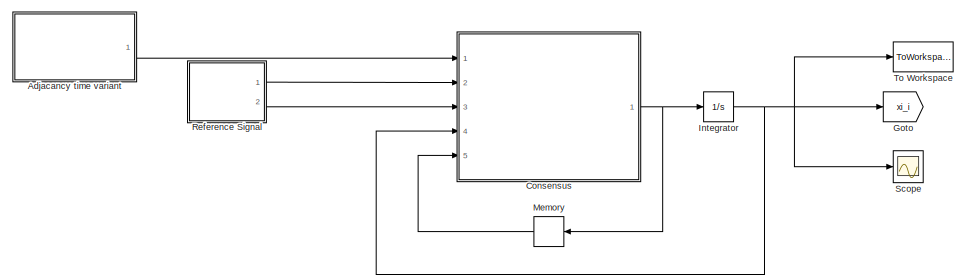
[diagram: root canvas - part 1/4, top center region]
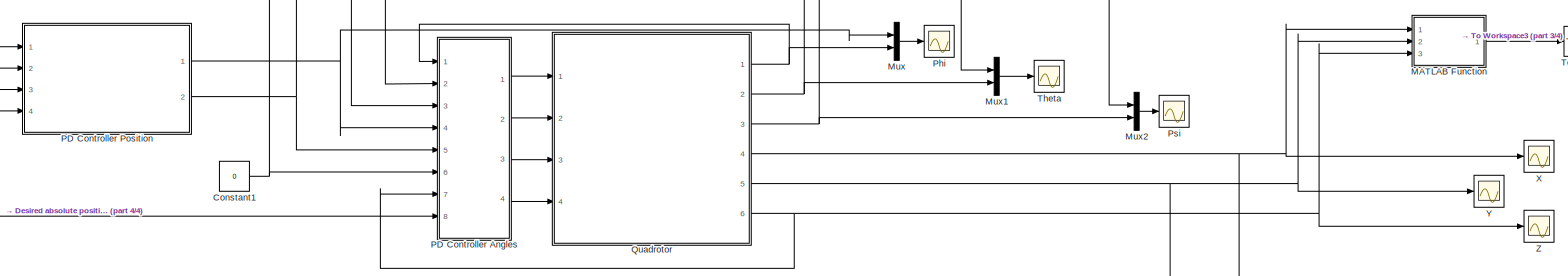
[diagram: root canvas - part 2/4, central region]
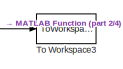
[diagram: root canvas - part 3/4, middle right region]
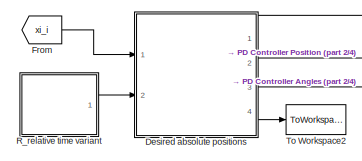
[diagram: root canvas - part 4/4, middle left region]
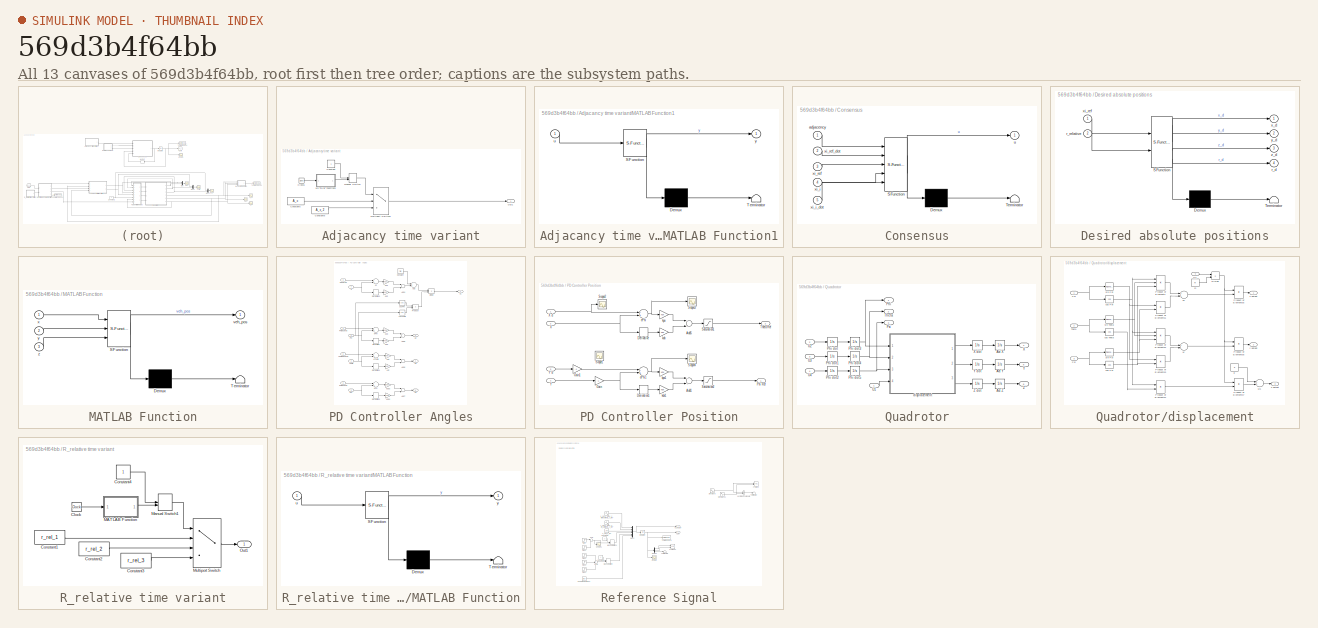
[diagram: thumbnail index - all 13 canvases of the model, root first then tree order]
MODEL slx_569d3b4f64bb
KIND model
CONFIG AbsTol = auto
CONFIG FixedStep = 0.01
CONFIG MaxStep = 0.01
CONFIG MinStep = auto
CONFIG RelTol = 1e-3
CONFIG SampleTimeConstraint = Unconstrained
CONFIG Solver = VariableStepAuto
CONFIG SolverMode = Auto
CONFIG SolverName = VariableStepAuto
CONFIG StartTime = 0.0
CONFIG StopTime = 100
BLOCK [SubSystem] Adjacancy time variant
  Ports = [0, 1]
  RequestExecContextInheritance = off
  Variant = off
BLOCK [Clock] Adjacancy time variant/Clock1
BLOCK [Constant] Adjacancy time variant/Constant
BLOCK [Constant] Adjacancy time variant/Constant5
  Value = A_c
BLOCK [Constant] Adjacancy time variant/Constant6
  Value = A_c_2
BLOCK [SubSystem] Adjacancy time variant/MATLAB Function1
  ErrorFcn = Stateflow.Translate.translate
  PermitHierarchicalResolution = ExplicitOnly
  Ports = [1, 1]
  RequestExecContextInheritance = off
  SFBlockType = MATLAB Function
  TreatAsAtomicUnit = on
  Variant = off
BLOCK [Demux] Adjacancy time variant/MATLAB Function1/ Demux 
  Outputs = 1
  Ports = [1, 1]
BLOCK [S-Function] Adjacancy time variant/MATLAB Function1/ SFunction 
  EnableBusSupport = on
  FunctionName = sf_sfun
  PortCounts = [1 2]
  Ports = [1, 2]
  SFunctionDeploymentMode = off
  Tag = Stateflow S-Function simulation 1
BLOCK [Terminator] Adjacancy time variant/MATLAB Function1/ Terminator 
BLOCK [Inport] Adjacancy time variant/MATLAB Function1/u
  IconDisplay = Port number
BLOCK [Outport] Adjacancy time variant/MATLAB Function1/y
  IconDisplay = Port number
BLOCK [ManualSwitch] Adjacancy time variant/Manual Switch
BLOCK [MultiPortSwitch] Adjacancy time variant/Multiport Switch1
  InputSameDT = off
  Inputs = 2
  Ports = [3, 1]
  SaturateOnIntegerOverflow = off
BLOCK [Outport] Adjacancy time variant/Out1
  IconDisplay = Port number
BLOCK [SubSystem] Consensus
  ErrorFcn = Stateflow.Translate.translate
  MinAlgLoopOccurrences = on
  PermitHierarchicalResolution = ExplicitOnly
  Ports = [5, 1]
  RequestExecContextInheritance = off
  SFBlockType = MATLAB Function
  TreatAsAtomicUnit = on
  Variant = off
BLOCK [Demux] Consensus/ Demux 
  Outputs = 1
  Ports = [1, 1]
BLOCK [S-Function] Consensus/ SFunction 
  EnableBusSupport = on
  FunctionName = sf_sfun
  PortCounts = [5 2]
  Ports = [5, 2]
  SFunctionDeploymentMode = off
  Tag = Stateflow S-Function simulation 2
BLOCK [Terminator] Consensus/ Terminator 
BLOCK [Inport] Consensus/adjacency
  IconDisplay = Port number
BLOCK [Outport] Consensus/u
  IconDisplay = Port number
BLOCK [Inport] Consensus/xi_i
  IconDisplay = Port number
  Port = 4
BLOCK [Inport] Consensus/xi_i_dot
  IconDisplay = Port number
  Port = 5
BLOCK [Inport] Consensus/xi_ref
  IconDisplay = Port number
  Port = 3
BLOCK [Inport] Consensus/xi_ref_dot
  IconDisplay = Port number
  Port = 2
BLOCK [Constant] Constant1
  Value = 0
BLOCK [SubSystem] Desired absolute positions
  ErrorFcn = Stateflow.Translate.translate
  PermitHierarchicalResolution = ExplicitOnly
  Ports = [2, 4]
  RequestExecContextInheritance = off
  SFBlockType = MATLAB Function
  TreatAsAtomicUnit = on
  Variant = off
BLOCK [Demux] Desired absolute positions/ Demux 
  Outputs = 1
  Ports = [1, 1]
BLOCK [S-Function] Desired absolute positions/ SFunction 
  EnableBusSupport = on
  FunctionName = sf_sfun
  PortCounts = [2 5]
  Ports = [2, 5]
  SFunctionDeploymentMode = off
  Tag = Stateflow S-Function simulation 4
BLOCK [Terminator] Desired absolute positions/ Terminator 
BLOCK [Outport] Desired absolute positions/r_d
  IconDisplay = Port number
  Port = 4
BLOCK [Inport] Desired absolute positions/r_relative
  IconDisplay = Port number
  Port = 2
BLOCK [Outport] Desired absolute positions/x_d
  IconDisplay = Port number
BLOCK [Inport] Desired absolute positions/xi_ref
  IconDisplay = Port number
BLOCK [Outport] Desired absolute positions/y_d
  IconDisplay = Port number
  Port = 2
BLOCK [Outport] Desired absolute positions/z_d
  IconDisplay = Port number
  Port = 3
BLOCK [From] From
  GotoTag = xi_i
BLOCK [Goto] Goto
  GotoTag = xi_i
BLOCK [Integrator] Integrator
  InitialCondition = xi_init
  Ports = [1, 1]
BLOCK [SubSystem] MATLAB Function
  ErrorFcn = Stateflow.Translate.translate
  PermitHierarchicalResolution = ExplicitOnly
  Ports = [3, 1]
  RequestExecContextInheritance = off
  SFBlockType = MATLAB Function
  TreatAsAtomicUnit = on
  Variant = off
BLOCK [Demux] MATLAB Function/ Demux 
  Outputs = 1
  Ports = [1, 1]
BLOCK [S-Function] MATLAB Function/ SFunction 
  EnableBusSupport = on
  FunctionName = sf_sfun
  PortCounts = [3 2]
  Ports = [3, 2]
  SFunctionDeploymentMode = off
  Tag = Stateflow S-Function simulation 5
BLOCK [Terminator] MATLAB Function/ Terminator 
BLOCK [Outport] MATLAB Function/veh_pos
  IconDisplay = Port number
BLOCK [Inport] MATLAB Function/x
  IconDisplay = Port number
BLOCK [Inport] MATLAB Function/y
  IconDisplay = Port number
  Port = 2
BLOCK [Inport] MATLAB Function/z
  IconDisplay = Port number
  Port = 3
BLOCK [Memory] Memory
BLOCK [Mux] Mux
  DisplayOption = bar
  Inputs = 2
  Ports = [2, 1]
BLOCK [Mux] Mux1
  DisplayOption = bar
  Inputs = 2
  Ports = [2, 1]
BLOCK [Mux] Mux2
  DisplayOption = bar
  Inputs = 2
  Ports = [2, 1]
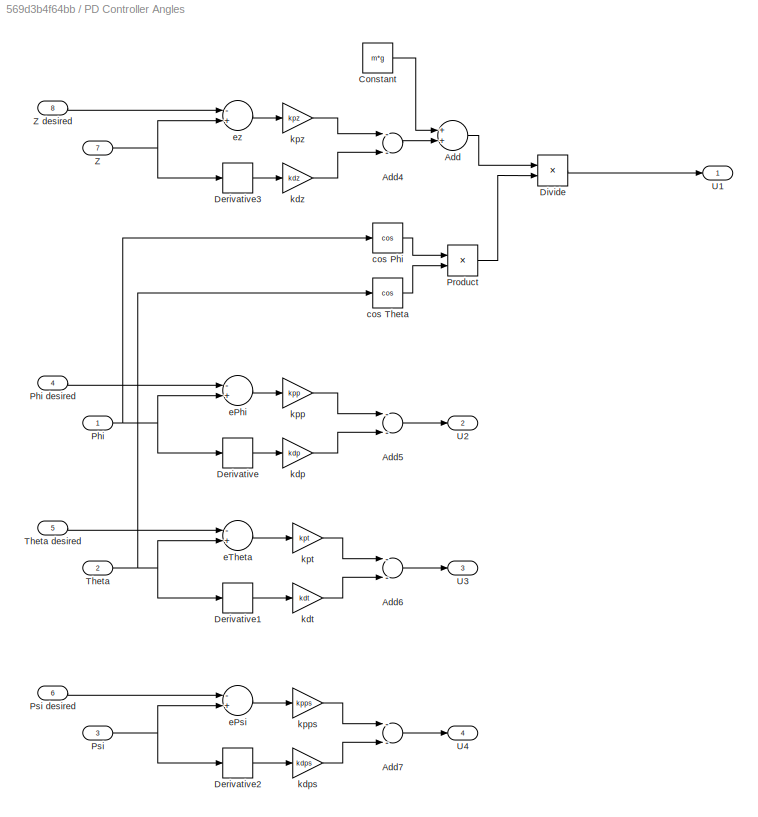
BLOCK [SubSystem] PD Controller Angles
  Ports = [8, 4]
  RequestExecContextInheritance = off
  Variant = off
BLOCK [Sum] PD Controller Angles/Add
  InputSameDT = off
  OutDataTypeStr = Inherit: Inherit via internal rule
  Ports = [2, 1]
  SaturateOnIntegerOverflow = off
BLOCK [Sum] PD Controller Angles/Add4
  InputSameDT = off
  Inputs = --
  OutDataTypeStr = Inherit: Inherit via internal rule
  Ports = [2, 1]
  SaturateOnIntegerOverflow = off
BLOCK [Sum] PD Controller Angles/Add5
  InputSameDT = off
  Inputs = --
  OutDataTypeStr = Inherit: Inherit via internal rule
  Ports = [2, 1]
  SaturateOnIntegerOverflow = off
BLOCK [Sum] PD Controller Angles/Add6
  InputSameDT = off
  Inputs = --
  OutDataTypeStr = Inherit: Inherit via internal rule
  Ports = [2, 1]
  SaturateOnIntegerOverflow = off
BLOCK [Sum] PD Controller Angles/Add7
  InputSameDT = off
  Inputs = --
  OutDataTypeStr = Inherit: Inherit via internal rule
  Ports = [2, 1]
  SaturateOnIntegerOverflow = off
BLOCK [Constant] PD Controller Angles/Constant
  Value = m*g
BLOCK [Derivative] PD Controller Angles/Derivative
BLOCK [Derivative] PD Controller Angles/Derivative1
BLOCK [Derivative] PD Controller Angles/Derivative2
BLOCK [Derivative] PD Controller Angles/Derivative3
BLOCK [Product] PD Controller Angles/Divide
  InputSameDT = off
  Inputs = */
  OutDataTypeStr = Inherit: Inherit via internal rule
  Ports = [2, 1]
  RndMeth = Floor
  SaturateOnIntegerOverflow = off
BLOCK [Inport] PD Controller Angles/Phi
  IconDisplay = Port number
BLOCK [Inport] PD Controller Angles/Phi desired
  IconDisplay = Port number
  Port = 4
BLOCK [Product] PD Controller Angles/Product
  InputSameDT = off
  OutDataTypeStr = Inherit: Inherit via internal rule
  Ports = [2, 1]
  SaturateOnIntegerOverflow = off
BLOCK [Inport] PD Controller Angles/Psi
  IconDisplay = Port number
  Port = 3
BLOCK [Inport] PD Controller Angles/Psi desired
  IconDisplay = Port number
  Port = 6
BLOCK [Inport] PD Controller Angles/Theta
  IconDisplay = Port number
  Port = 2
BLOCK [Inport] PD Controller Angles/Theta desired
  IconDisplay = Port number
  Port = 5
BLOCK [Outport] PD Controller Angles/U1
  IconDisplay = Port number
BLOCK [Outport] PD Controller Angles/U2
  IconDisplay = Port number
  Port = 2
BLOCK [Outport] PD Controller Angles/U3
  IconDisplay = Port number
  Port = 3
BLOCK [Outport] PD Controller Angles/U4
  IconDisplay = Port number
  Port = 4
BLOCK [Inport] PD Controller Angles/Z
  IconDisplay = Port number
  Port = 7
BLOCK [Inport] PD Controller Angles/Z desired
  IconDisplay = Port number
  Port = 8
BLOCK [Trigonometry] PD Controller Angles/cos Phi
  Operator = cos
  Ports = [1, 1]
BLOCK [Trigonometry] PD Controller Angles/cos Theta
  Operator = cos
  Ports = [1, 1]
BLOCK [Sum] PD Controller Angles/ePhi
  InputSameDT = off
  Inputs = -+
  OutDataTypeStr = Inherit: Inherit via internal rule
  Ports = [2, 1]
  SaturateOnIntegerOverflow = off
BLOCK [Sum] PD Controller Angles/ePsi
  InputSameDT = off
  Inputs = -+
  OutDataTypeStr = Inherit: Inherit via internal rule
  Ports = [2, 1]
  SaturateOnIntegerOverflow = off
BLOCK [Sum] PD Controller Angles/eTheta
  InputSameDT = off
  Inputs = -+
  OutDataTypeStr = Inherit: Inherit via internal rule
  Ports = [2, 1]
  SaturateOnIntegerOverflow = off
BLOCK [Sum] PD Controller Angles/ez
  InputSameDT = off
  Inputs = -+
  OutDataTypeStr = Inherit: Inherit via internal rule
  Ports = [2, 1]
  SaturateOnIntegerOverflow = off
BLOCK [Gain] PD Controller Angles/kdp
  Gain = kdp
  OutDataTypeStr = Inherit: Inherit via internal rule
  ParamDataTypeStr = Inherit: Inherit via internal rule
  SaturateOnIntegerOverflow = off
BLOCK [Gain] PD Controller Angles/kdps
  Gain = kdps
  OutDataTypeStr = Inherit: Inherit via internal rule
  ParamDataTypeStr = Inherit: Inherit via internal rule
  SaturateOnIntegerOverflow = off
BLOCK [Gain] PD Controller Angles/kdt
  Gain = kdt
  OutDataTypeStr = Inherit: Inherit via internal rule
  ParamDataTypeStr = Inherit: Inherit via internal rule
  SaturateOnIntegerOverflow = off
BLOCK [Gain] PD Controller Angles/kdz
  Gain = kdz
  OutDataTypeStr = Inherit: Inherit via internal rule
  ParamDataTypeStr = Inherit: Inherit via internal rule
  SaturateOnIntegerOverflow = off
BLOCK [Gain] PD Controller Angles/kpp
  Gain = kpp
  OutDataTypeStr = Inherit: Inherit via internal rule
  ParamDataTypeStr = Inherit: Inherit via internal rule
  SaturateOnIntegerOverflow = off
BLOCK [Gain] PD Controller Angles/kpps
  Gain = kpps
  OutDataTypeStr = Inherit: Inherit via internal rule
  ParamDataTypeStr = Inherit: Inherit via internal rule
  SaturateOnIntegerOverflow = off
BLOCK [Gain] PD Controller Angles/kpt
  Gain = kpt
  OutDataTypeStr = Inherit: Inherit via internal rule
  ParamDataTypeStr = Inherit: Inherit via internal rule
  SaturateOnIntegerOverflow = off
BLOCK [Gain] PD Controller Angles/kpz
  Gain = kpz
  OutDataTypeStr = Inherit: Inherit via internal rule
  ParamDataTypeStr = Inherit: Inherit via internal rule
  SaturateOnIntegerOverflow = off
BLOCK [SubSystem] PD Controller Position
  Ports = [4, 2]
  RequestExecContextInheritance = off
  Variant = off
BLOCK [Sum] PD Controller Position/Add1
  InputSameDT = off
  Inputs = --
  OutDataTypeStr = Inherit: Inherit via internal rule
  Ports = [2, 1]
  SaturateOnIntegerOverflow = off
BLOCK [Sum] PD Controller Position/Add5
  InputSameDT = off
  Inputs = --
  OutDataTypeStr = Inherit: Inherit via internal rule
  Ports = [2, 1]
  SaturateOnIntegerOverflow = off
BLOCK [Derivative] PD Controller Position/Derivative
BLOCK [Derivative] PD Controller Position/Derivative1
BLOCK [Gain] PD Controller Position/Gain
  Gain = -1
  OutDataTypeStr = Inherit: Inherit via internal rule
  ParamDataTypeStr = Inherit: Inherit via internal rule
  SaturateOnIntegerOverflow = off
BLOCK [Gain] PD Controller Position/Gain1
  Gain = -1
  OutDataTypeStr = Inherit: Inherit via internal rule
  ParamDataTypeStr = Inherit: Inherit via internal rule
  SaturateOnIntegerOverflow = off
BLOCK [Outport] PD Controller Position/Phi Ref
  IconDisplay = Port number
BLOCK [Saturate] PD Controller Position/Saturation1
  InputPortMap = u0
  LowerLimit = -0.05
  Ports = [1, 1]
  UpperLimit = 0.05
  ZeroCross = off
BLOCK [Saturate] PD Controller Position/Saturation2
  InputPortMap = u0
  LowerLimit = -0.05
  Ports = [1, 1]
  UpperLimit = 0.05
  ZeroCross = off
BLOCK [Scope] PD Controller Position/Scope1
  Ports = [1]
  ScopeSpecificationString = Simulink.scopes.TimeScopeBlockCfg('CurrentConfiguration', extmgr.ConfigurationSet(extmgr.Configuration('Core','General UI',true),extmgr.Configuration('Core','Source UI',true),extmgr.Configuration('Sources','WiredSimulink',true,'DataLoggingVariableName','ScopeData6'),extmgr.Configuration('Visuals','Time Domain',true,'SerializedDisplays',{struct('MinYLimReal','-0.25','MaxYLimReal','2.25','YLabelReal...<+1354ch>
BLOCK [Scope] PD Controller Position/Scope2
  Ports = [1]
  ScopeSpecificationString = Simulink.scopes.TimeScopeBlockCfg('CurrentConfiguration', extmgr.ConfigurationSet(extmgr.Configuration('Core','General UI',true),extmgr.Configuration('Core','Source UI',true),extmgr.Configuration('Sources','WiredSimulink',true,'DataLoggingVariableName','ScopeData8'),extmgr.Configuration('Visuals','Time Domain',true,'SerializedDisplays',{struct('MinYLimReal','-0.25','MaxYLimReal','2.25','YLabelReal...<+1354ch>
BLOCK [Scope] PD Controller Position/Scope3
  Ports = [1]
  ScopeSpecificationString = Simulink.scopes.TimeScopeBlockCfg('CurrentConfiguration', extmgr.ConfigurationSet(extmgr.Configuration('Core','General UI',true),extmgr.Configuration('Core','Source UI',true),extmgr.Configuration('Sources','WiredSimulink',true,'DataLoggingVariableName','ScopeData9'),extmgr.Configuration('Visuals','Time Domain',true,'SerializedDisplays',{struct('MinYLimReal','-2.27569','MaxYLimReal','0.48117','YLab...<+1403ch>
BLOCK [Scope] PD Controller Position/Scope4
  Ports = [1]
  ScopeSpecificationString = Simulink.scopes.TimeScopeBlockCfg('CurrentConfiguration', extmgr.ConfigurationSet(extmgr.Configuration('Core','General UI',true),extmgr.Configuration('Core','Source UI',true),extmgr.Configuration('Sources','WiredSimulink',true,'DataLoggingVariableName','ScopeData7'),extmgr.Configuration('Visuals','Time Domain',true,'SerializedDisplays',{struct('MinYLimReal','-2.2756','MaxYLimReal','0.48042','YLabe...<+1401ch>
BLOCK [Outport] PD Controller Position/Theta Ref
  IconDisplay = Port number
  Port = 2
BLOCK [Inport] PD Controller Position/X
  IconDisplay = Port number
  Port = 2
BLOCK [Inport] PD Controller Position/X d
  IconDisplay = Port number
BLOCK [Inport] PD Controller Position/Y
  IconDisplay = Port number
  Port = 4
BLOCK [Inport] PD Controller Position/Y d
  IconDisplay = Port number
  Port = 3
BLOCK [Sum] PD Controller Position/ePhi
  InputSameDT = off
  Inputs = -+
  OutDataTypeStr = Inherit: Inherit via internal rule
  Ports = [2, 1]
  SaturateOnIntegerOverflow = off
BLOCK [Sum] PD Controller Position/ePhi1
  InputSameDT = off
  Inputs = -+
  OutDataTypeStr = Inherit: Inherit via internal rule
  Ports = [2, 1]
  SaturateOnIntegerOverflow = off
BLOCK [Gain] PD Controller Position/kdx
  Gain = kdx
  OutDataTypeStr = Inherit: Inherit via internal rule
  ParamDataTypeStr = Inherit: Inherit via internal rule
  SaturateOnIntegerOverflow = off
BLOCK [Gain] PD Controller Position/kdx1
  Gain = kdx
  OutDataTypeStr = Inherit: Inherit via internal rule
  ParamDataTypeStr = Inherit: Inherit via internal rule
  SaturateOnIntegerOverflow = off
BLOCK [Gain] PD Controller Position/kpx
  Gain = kpx
  OutDataTypeStr = Inherit: Inherit via internal rule
  ParamDataTypeStr = Inherit: Inherit via internal rule
  SaturateOnIntegerOverflow = off
BLOCK [Gain] PD Controller Position/kpx1
  Gain = kpx
  OutDataTypeStr = Inherit: Inherit via internal rule
  ParamDataTypeStr = Inherit: Inherit via internal rule
  SaturateOnIntegerOverflow = off
BLOCK [Scope] Phi
  Ports = [1]
  ScopeSpecificationString = Simulink.scopes.TimeScopeBlockCfg('CurrentConfiguration', extmgr.ConfigurationSet(extmgr.Configuration('Core','General UI',true),extmgr.Configuration('Core','Source UI',true),extmgr.Configuration('Sources','WiredSimulink',true,'DataLoggingSaveFormat','StructureWithTime','DataLoggingDecimation','1','DataLoggingDecimateData',true,'DataLoggingVariableName','ScopeData12'),extmgr.Configuration('Visuals...<+1700ch>
BLOCK [Scope] Psi
  Ports = [1]
  ScopeSpecificationString = Simulink.scopes.TimeScopeBlockCfg('CurrentConfiguration', extmgr.ConfigurationSet(extmgr.Configuration('Core','General UI',true),extmgr.Configuration('Core','Source UI',true),extmgr.Configuration('Sources','WiredSimulink',true,'DataLoggingVariableName','ScopeData2','DataLoggingSaveFormat','StructureWithTime','DataLoggingDecimation','1','DataLoggingDecimateData',true),extmgr.Configuration('Visuals'...<+1661ch>
BLOCK [SubSystem] Quadrotor
  Ports = [4, 6]
  RequestExecContextInheritance = off
  Variant = off
BLOCK [Integrator] Quadrotor/Act X
  Ports = [1, 1]
BLOCK [Integrator] Quadrotor/Act Y
  Ports = [1, 1]
BLOCK [Integrator] Quadrotor/Act Z
  Ports = [1, 1]
BLOCK [Outport] Quadrotor/Phi
  IconDisplay = Port number
BLOCK [Integrator] Quadrotor/Phi dot
  Ports = [1, 1]
BLOCK [Integrator] Quadrotor/Phi dot1
  Ports = [1, 1]
  ZeroCross = off
BLOCK [Integrator] Quadrotor/Phi dot2
  Ports = [1, 1]
  ZeroCross = off
BLOCK [Integrator] Quadrotor/Phi dot3
  Ports = [1, 1]
  ZeroCross = off
BLOCK [Integrator] Quadrotor/Phi dot4
  Ports = [1, 1]
  ZeroCross = off
BLOCK [Integrator] Quadrotor/Phi dot5
  Ports = [1, 1]
  ZeroCross = off
BLOCK [Outport] Quadrotor/Psi
  IconDisplay = Port number
  Port = 3
BLOCK [Outport] Quadrotor/Theta
  IconDisplay = Port number
  Port = 2
BLOCK [Inport] Quadrotor/U1
  IconDisplay = Port number
BLOCK [Inport] Quadrotor/U2
  IconDisplay = Port number
  Port = 2
BLOCK [Inport] Quadrotor/U3
  IconDisplay = Port number
  Port = 3
BLOCK [Inport] Quadrotor/U4
  IconDisplay = Port number
  Port = 4
BLOCK [Outport] Quadrotor/X
  IconDisplay = Port number
  Port = 4
BLOCK [Integrator] Quadrotor/X dot
  Ports = [1, 1]
BLOCK [Outport] Quadrotor/Y
  IconDisplay = Port number
  Port = 5
BLOCK [Integrator] Quadrotor/Y dot
  Ports = [1, 1]
BLOCK [Outport] Quadrotor/Z
  IconDisplay = Port number
  Port = 6
BLOCK [Integrator] Quadrotor/Z dot
  Ports = [1, 1]
BLOCK [SubSystem] Quadrotor/displacement
  Ports = [4, 3]
  RequestExecContextInheritance = off
  Variant = off
BLOCK [Product] Quadrotor/displacement/Divide
  InputSameDT = off
  Inputs = */
  OutDataTypeStr = Inherit: Inherit via internal rule
  Ports = [2, 1]
  RndMeth = Floor
  SaturateOnIntegerOverflow = off
BLOCK [Inport] Quadrotor/displacement/Phi
  IconDisplay = Port number
BLOCK [Product] Quadrotor/displacement/Product of Elements
  InputSameDT = off
  Inputs = 3
  OutDataTypeStr = Inherit: Inherit via internal rule
  Ports = [3, 1]
  RndMeth = Floor
  SaturateOnIntegerOverflow = off
BLOCK [Product] Quadrotor/displacement/Product of Elements1
  InputSameDT = off
  OutDataTypeStr = Inherit: Inherit via internal rule
  Ports = [2, 1]
  RndMeth = Floor
  SaturateOnIntegerOverflow = off
BLOCK [Product] Quadrotor/displacement/Product of Elements2
  InputSameDT = off
  Inputs = 3
  OutDataTypeStr = Inherit: Inherit via internal rule
  Ports = [3, 1]
  RndMeth = Floor
  SaturateOnIntegerOverflow = off
BLOCK [Product] Quadrotor/displacement/Product of Elements3
  InputSameDT = off
  OutDataTypeStr = Inherit: Inherit via internal rule
  Ports = [2, 1]
  RndMeth = Floor
  SaturateOnIntegerOverflow = off
BLOCK [Product] Quadrotor/displacement/Product of Elements4
  InputSameDT = off
  OutDataTypeStr = Inherit: Inherit via internal rule
  Ports = [2, 1]
  RndMeth = Floor
  SaturateOnIntegerOverflow = off
BLOCK [Product] Quadrotor/displacement/Product of Elements5
  InputSameDT = off
  OutDataTypeStr = Inherit: Inherit via internal rule
  Ports = [2, 1]
  RndMeth = Floor
  SaturateOnIntegerOverflow = off
BLOCK [Product] Quadrotor/displacement/Product of Elements6
  InputSameDT = off
  OutDataTypeStr = Inherit: Inherit via internal rule
  Ports = [2, 1]
  RndMeth = Floor
  SaturateOnIntegerOverflow = off
BLOCK [Product] Quadrotor/displacement/Product of Elements7
  InputSameDT = off
  OutDataTypeStr = Inherit: Inherit via internal rule
  Ports = [2, 1]
  RndMeth = Floor
  SaturateOnIntegerOverflow = off
BLOCK [Inport] Quadrotor/displacement/Psi
  IconDisplay = Port number
  Port = 3
BLOCK [Inport] Quadrotor/displacement/Theta
  IconDisplay = Port number
  Port = 2
BLOCK [Inport] Quadrotor/displacement/U1
  IconDisplay = Port number
  Port = 4
BLOCK [Trigonometry] Quadrotor/displacement/cos Phi
  Operator = cos
  Ports = [1, 1]
BLOCK [Trigonometry] Quadrotor/displacement/cos Psi
  Operator = cos
  Ports = [1, 1]
BLOCK [Trigonometry] Quadrotor/displacement/cos Theta
  Operator = cos
  Ports = [1, 1]
BLOCK [Constant] Quadrotor/displacement/g
  Value = g
BLOCK [Constant] Quadrotor/displacement/m
  Value = m
BLOCK [Trigonometry] Quadrotor/displacement/sin Phi
  Ports = [1, 1]
BLOCK [Trigonometry] Quadrotor/displacement/sin Psi
  Ports = [1, 1]
BLOCK [Trigonometry] Quadrotor/displacement/sin Theta
  Ports = [1, 1]
BLOCK [Sum] Quadrotor/displacement/ux
  InputSameDT = off
  OutDataTypeStr = Inherit: Inherit via internal rule
  Ports = [2, 1]
  SaturateOnIntegerOverflow = off
BLOCK [Sum] Quadrotor/displacement/uy
  InputSameDT = off
  Inputs = +-
  OutDataTypeStr = Inherit: Inherit via internal rule
  Ports = [2, 1]
  SaturateOnIntegerOverflow = off
BLOCK [Sum] Quadrotor/displacement/uy1
  InputSameDT = off
  Inputs = -+
  OutDataTypeStr = Inherit: Inherit via internal rule
  Ports = [2, 1]
  SaturateOnIntegerOverflow = off
BLOCK [Outport] Quadrotor/displacement/x dotdot
  IconDisplay = Port number
BLOCK [Outport] Quadrotor/displacement/y dotdot
  IconDisplay = Port number
  Port = 2
BLOCK [Outport] Quadrotor/displacement/z dotdot
  IconDisplay = Port number
  Port = 3
BLOCK [SubSystem] R_relative time variant
  Ports = [0, 1]
  RequestExecContextInheritance = off
  Variant = off
BLOCK [Clock] R_relative time variant/Clock
BLOCK [Constant] R_relative time variant/Constant1
  Value = r_rel_1
BLOCK [Constant] R_relative time variant/Constant2
  Value = r_rel_2
BLOCK [Constant] R_relative time variant/Constant3
  Value = r_rel_3
BLOCK [Constant] R_relative time variant/Constant4
BLOCK [SubSystem] R_relative time variant/MATLAB Function
  ErrorFcn = Stateflow.Translate.translate
  PermitHierarchicalResolution = ExplicitOnly
  Ports = [1, 1]
  RequestExecContextInheritance = off
  SFBlockType = MATLAB Function
  TreatAsAtomicUnit = on
  Variant = off
BLOCK [Demux] R_relative time variant/MATLAB Function/ Demux 
  Outputs = 1
  Ports = [1, 1]
BLOCK [S-Function] R_relative time variant/MATLAB Function/ SFunction 
  EnableBusSupport = on
  FunctionName = sf_sfun
  PortCounts = [1 2]
  Ports = [1, 2]
  SFunctionDeploymentMode = off
  Tag = Stateflow S-Function simulation 3
BLOCK [Terminator] R_relative time variant/MATLAB Function/ Terminator 
BLOCK [Inport] R_relative time variant/MATLAB Function/u
  IconDisplay = Port number
BLOCK [Outport] R_relative time variant/MATLAB Function/y
  IconDisplay = Port number
BLOCK [ManualSwitch] R_relative time variant/Manual Switch1
BLOCK [MultiPortSwitch] R_relative time variant/Multiport Switch
  InputSameDT = off
  Ports = [4, 1]
  SaturateOnIntegerOverflow = off
BLOCK [Outport] R_relative time variant/Out1
  IconDisplay = Port number
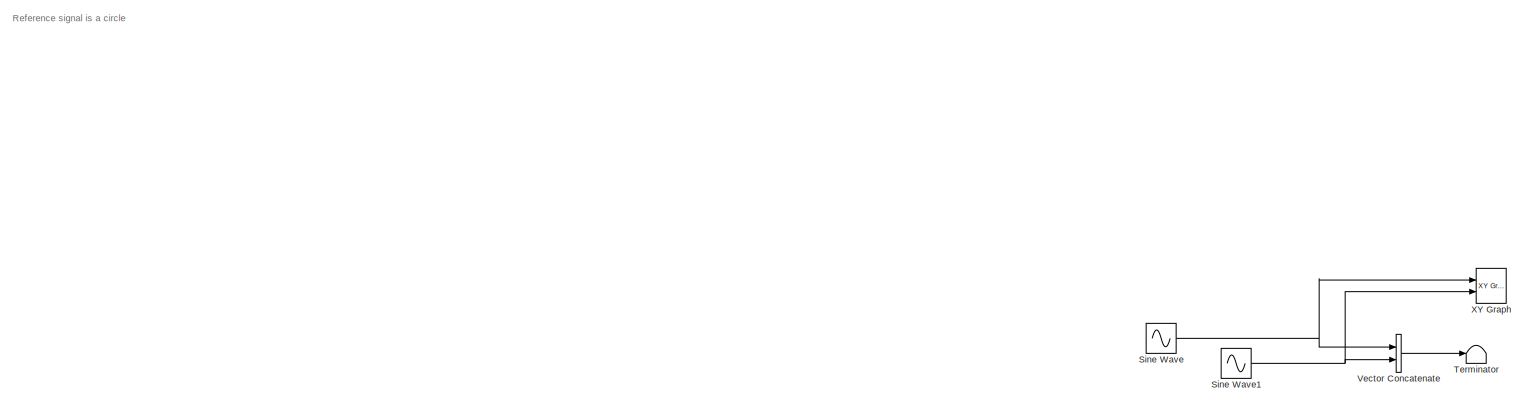
[diagram: Reference Signal - part 1/2, full width, top band]
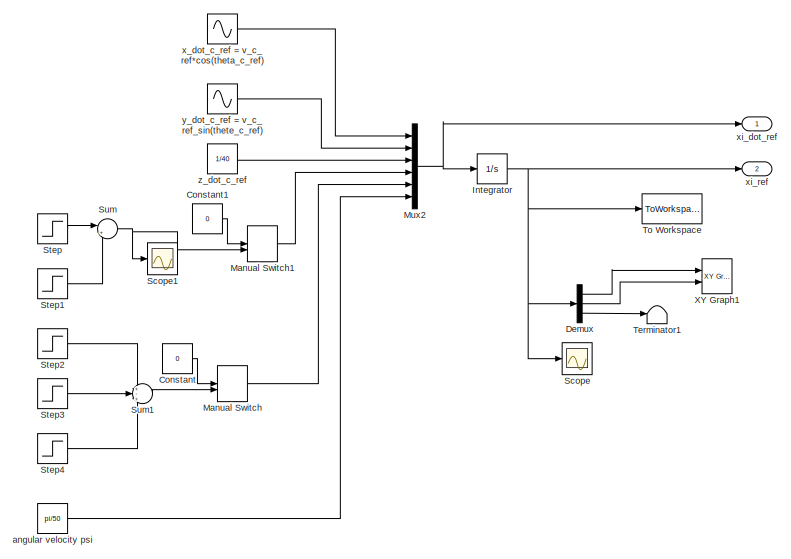
[diagram: Reference Signal - part 2/2, bottom center region]
BLOCK [SubSystem] Reference Signal
  Ports = [0, 2]
  RequestExecContextInheritance = off
  Variant = off
BLOCK [Constant] Reference Signal/Constant
  Value = 0
BLOCK [Constant] Reference Signal/Constant1
  Value = 0
BLOCK [Demux] Reference Signal/Demux
  DisplayOption = bar
  Outputs = 3
  Ports = [1, 3]
BLOCK [Integrator] Reference Signal/Integrator
  InitialCondition = [0;0;0;0;0;0]
  Ports = [1, 1]
BLOCK [ManualSwitch] Reference Signal/Manual Switch
BLOCK [ManualSwitch] Reference Signal/Manual Switch1
  CurrentSetting = 0
BLOCK [Mux] Reference Signal/Mux2
  DisplayOption = bar
  Inputs = 6
  Ports = [6, 1]
BLOCK [Scope] Reference Signal/Scope
  Ports = [1]
  ScopeSpecificationString = Simulink.scopes.TimeScopeBlockCfg('CurrentConfiguration', extmgr.ConfigurationSet(extmgr.Configuration('Core','General UI',true),extmgr.Configuration('Core','Source UI',true),extmgr.Configuration('Sources','WiredSimulink',true,'DataLoggingVariableName','ScopeData1'),extmgr.Configuration('Visuals','Time Domain',true,'SerializedDisplays',{struct('MinYLimReal','-1.79783','MaxYLimReal','7.18108','YLab...<+1431ch>
BLOCK [Scope] Reference Signal/Scope1
  Ports = [1]
  ScopeSpecificationString = C++SS(StrPVP('SaveName','ScopeData1'),StrPVP('LimitDataPoints','on'),StrPVP('DataFormat','Array'),StrPVP('Decimation','1'),StrPVP('BlockParamSampleInput','off'))
BLOCK [Sin] Reference Signal/Sine Wave
  Commented = on
  Phase = pi/2
  Ports = [0, 1]
  SampleTime = 0
BLOCK [Sin] Reference Signal/Sine Wave1
  Commented = on
  Ports = [0, 1]
  SampleTime = 0
BLOCK [Step] Reference Signal/Step
  After = pi/10
  SampleTime = 0
  Time = 20
BLOCK [Step] Reference Signal/Step1
  After = pi/10
  SampleTime = 0
  Time = 40
BLOCK [Step] Reference Signal/Step2
  After = pi/30
  SampleTime = 0
  Time = 10
BLOCK [Step] Reference Signal/Step3
  After = pi/30*2
  SampleTime = 0
  Time = 15
BLOCK [Step] Reference Signal/Step4
  After = pi/30
  SampleTime = 0
  Time = 20
BLOCK [Sum] Reference Signal/Sum
  IconShape = round
  InputSameDT = off
  Inputs = |+-
  OutDataTypeStr = Inherit: Inherit via internal rule
  Ports = [2, 1]
  SaturateOnIntegerOverflow = off
BLOCK [Sum] Reference Signal/Sum1
  IconShape = round
  InputSameDT = off
  Inputs = +-+
  OutDataTypeStr = Inherit: Inherit via internal rule
  Ports = [3, 1]
  SaturateOnIntegerOverflow = off
BLOCK [Terminator] Reference Signal/Terminator
  Commented = on
BLOCK [Terminator] Reference Signal/Terminator1
BLOCK [ToWorkspace] Reference Signal/To Workspace
  FixptAsFi = on
  MaxDataPoints = inf
  Ports = [1]
  SampleTime = -1
  Save2DSignal = 3-D array (concatenate along third dimension)
  SaveFormat = Timeseries
  VariableName = xi_ref
BLOCK [Concatenate] Reference Signal/Vector Concatenate
  Commented = on
  Ports = [2, 1]
BLOCK [Reference] Reference Signal/XY Graph  REF=simulink/Sinks/XY Graph
  Commented = on
  Ports = [2]
  SourceBlock = simulink/Sinks/XY Graph
  SourceType = XY scope.
BLOCK [Reference] Reference Signal/XY Graph1  REF=simulink/Sinks/XY Graph
  Commented = on
  Ports = [2]
  SourceBlock = simulink/Sinks/XY Graph
  SourceType = XY scope.
BLOCK [Constant] Reference Signal/angular velocity psi
  Value = pi/50
BLOCK [Sin] Reference Signal/x_dot_c_ref = v_c_ref*cos(theta_c_ref)
  Amplitude = 9*pi/500
  Frequency = pi/50
  Phase = pi/2
  Ports = [0, 1]
  SampleTime = 0
BLOCK [Outport] Reference Signal/xi_dot_ref
  IconDisplay = Port number
BLOCK [Outport] Reference Signal/xi_ref
  IconDisplay = Port number
  Port = 2
BLOCK [Sin] Reference Signal/y_dot_c_ref = v_c_ref_sin(thete_c_ref)
  Amplitude = 9*pi/500
  Frequency = pi/50
  Ports = [0, 1]
  SampleTime = 0
BLOCK [Constant] Reference Signal/z_dot_c_ref
  Value = 1/40
BLOCK [Scope] Scope
  Ports = [1]
  ScopeSpecificationString = Simulink.scopes.TimeScopeBlockCfg('CurrentConfiguration', extmgr.ConfigurationSet(extmgr.Configuration('Core','General UI',true),extmgr.Configuration('Core','Source UI',true),extmgr.Configuration('Sources','WiredSimulink',true),extmgr.Configuration('Visuals','Time Domain',true,'SerializedDisplays',{struct('MinYLimReal','-4.56832','MaxYLimReal','7.25237','YLabelReal','','MinYLimMag','0.00000','MaxY...<+1645ch>
BLOCK [Scope] Theta
  Ports = [1]
  ScopeSpecificationString = Simulink.scopes.TimeScopeBlockCfg('CurrentConfiguration', extmgr.ConfigurationSet(extmgr.Configuration('Core','General UI',true),extmgr.Configuration('Core','Source UI',true),extmgr.Configuration('Sources','WiredSimulink',true,'DataLoggingVariableName','ScopeData1','DataLoggingSaveFormat','StructureWithTime','DataLoggingDecimation','1','DataLoggingDecimateData',true),extmgr.Configuration('Visuals'...<+1718ch>
BLOCK [ToWorkspace] To Workspace
  FixptAsFi = on
  MaxDataPoints = inf
  Ports = [1]
  SampleTime = -1
  Save2DSignal = 3-D array (concatenate along third dimension)
  SaveFormat = Timeseries
  VariableName = xi_ref_i
BLOCK [ToWorkspace] To Workspace2
  FixptAsFi = on
  MaxDataPoints = inf
  Ports = [1]
  SampleTime = -1
  Save2DSignal = 3-D array (concatenate along third dimension)
  SaveFormat = Timeseries
  VariableName = des_pos
BLOCK [ToWorkspace] To Workspace3
  FixptAsFi = on
  MaxDataPoints = inf
  Ports = [1]
  SampleTime = -1
  Save2DSignal = 3-D array (concatenate along third dimension)
  SaveFormat = Timeseries
  VariableName = vehicle_pos
BLOCK [Scope] X
  Ports = [1]
  ScopeSpecificationString = Simulink.scopes.TimeScopeBlockCfg('CurrentConfiguration', extmgr.ConfigurationSet(extmgr.Configuration('Core','General UI',true),extmgr.Configuration('Core','Source UI',true),extmgr.Configuration('Sources','WiredSimulink',true,'DataLoggingVariableName','ScopeData3','DataLoggingSaveFormat','StructureWithTime','DataLoggingDecimation','1','DataLoggingDecimateData',true),extmgr.Configuration('Visuals'...<+1763ch>
BLOCK [Scope] Y
  Ports = [1]
  ScopeSpecificationString = Simulink.scopes.TimeScopeBlockCfg('CurrentConfiguration', extmgr.ConfigurationSet(extmgr.Configuration('Core','General UI',true),extmgr.Configuration('Core','Source UI',true),extmgr.Configuration('Sources','WiredSimulink',true,'DataLoggingVariableName','ScopeData5','DataLoggingSaveFormat','StructureWithTime','DataLoggingLimitDataPoints',true,'DataLoggingDecimation','1','DataLoggingDecimateData',tr...<+1797ch>
BLOCK [Scope] Z
  Ports = [1]
  ScopeSpecificationString = Simulink.scopes.TimeScopeBlockCfg('CurrentConfiguration', extmgr.ConfigurationSet(extmgr.Configuration('Core','General UI',true),extmgr.Configuration('Core','Source UI',true),extmgr.Configuration('Sources','WiredSimulink',true,'DataLoggingVariableName','ScopeData4','DataLoggingSaveFormat','StructureWithTime','DataLoggingDecimation','1','DataLoggingDecimateData',true),extmgr.Configuration('Visuals'...<+1763ch>
ANNOTATION Reference Signal: Reference signal is a circle
LINE Adjacancy time variant/Clock1:1 -> Adjacancy time variant/MATLAB Function1:1
LINE Adjacancy time variant/Constant5:1 -> Adjacancy time variant/Multiport Switch1:2
LINE Adjacancy time variant/Constant6:1 -> Adjacancy time variant/Multiport Switch1:3
LINE Adjacancy time variant/Constant:1 -> Adjacancy time variant/Manual Switch:1
LINE Adjacancy time variant/MATLAB Function1:1 -> Adjacancy time variant/Manual Switch:2
LINE Adjacancy time variant/Manual Switch:1 -> Adjacancy time variant/Multiport Switch1:1
LINE Adjacancy time variant/Multiport Switch1:1 -> Adjacancy time variant/Out1:1
LINE Adjacancy time variant:1 -> Consensus:1
NET Consensus:1 -> Integrator:1, Memory:1
NET Constant1:1 -> Mux2:1, PD Controller Angles:6
LINE Desired absolute positions:1 -> PD Controller Position:1
LINE Desired absolute positions:2 -> PD Controller Position:3
LINE Desired absolute positions:3 -> PD Controller Angles:8
LINE Desired absolute positions:4 -> To Workspace2:1
LINE From:1 -> Desired absolute positions:1
NET Integrator:1 -> Consensus:4, Goto:1, Scope:1, To Workspace:1
LINE MATLAB Function:1 -> To Workspace3:1
LINE Memory:1 -> Consensus:5
LINE Mux1:1 -> Theta:1
LINE Mux2:1 -> Psi:1
LINE Mux:1 -> Phi:1
LINE PD Controller Angles/Add4:1 -> PD Controller Angles/Add:2
LINE PD Controller Angles/Add5:1 -> PD Controller Angles/U2:1
LINE PD Controller Angles/Add6:1 -> PD Controller Angles/U3:1
LINE PD Controller Angles/Add7:1 -> PD Controller Angles/U4:1
LINE PD Controller Angles/Add:1 -> PD Controller Angles/Divide:1
LINE PD Controller Angles/Constant:1 -> PD Controller Angles/Add:1
LINE PD Controller Angles/Derivative1:1 -> PD Controller Angles/kdt:1
LINE PD Controller Angles/Derivative2:1 -> PD Controller Angles/kdps:1
LINE PD Controller Angles/Derivative3:1 -> PD Controller Angles/kdz:1
LINE PD Controller Angles/Derivative:1 -> PD Controller Angles/kdp:1
LINE PD Controller Angles/Divide:1 -> PD Controller Angles/U1:1
LINE PD Controller Angles/Phi desired:1 -> PD Controller Angles/ePhi:1
NET PD Controller Angles/Phi:1 -> PD Controller Angles/Derivative:1, PD Controller Angles/cos Phi:1, PD Controller Angles/ePhi:2
LINE PD Controller Angles/Product:1 -> PD Controller Angles/Divide:2
LINE PD Controller Angles/Psi desired:1 -> PD Controller Angles/ePsi:1
NET PD Controller Angles/Psi:1 -> PD Controller Angles/Derivative2:1, PD Controller Angles/ePsi:2
LINE PD Controller Angles/Theta desired:1 -> PD Controller Angles/eTheta:1
NET PD Controller Angles/Theta:1 -> PD Controller Angles/Derivative1:1, PD Controller Angles/cos Theta:1, PD Controller Angles/eTheta:2
LINE PD Controller Angles/Z desired:1 -> PD Controller Angles/ez:1
NET PD Controller Angles/Z:1 -> PD Controller Angles/Derivative3:1, PD Controller Angles/ez:2
LINE PD Controller Angles/cos Phi:1 -> PD Controller Angles/Product:1
LINE PD Controller Angles/cos Theta:1 -> PD Controller Angles/Product:2
LINE PD Controller Angles/ePhi:1 -> PD Controller Angles/kpp:1
LINE PD Controller Angles/ePsi:1 -> PD Controller Angles/kpps:1
LINE PD Controller Angles/eTheta:1 -> PD Controller Angles/kpt:1
LINE PD Controller Angles/ez:1 -> PD Controller Angles/kpz:1
LINE PD Controller Angles/kdp:1 -> PD Controller Angles/Add5:2
LINE PD Controller Angles/kdps:1 -> PD Controller Angles/Add7:2
LINE PD Controller Angles/kdt:1 -> PD Controller Angles/Add6:2
LINE PD Controller Angles/kdz:1 -> PD Controller Angles/Add4:2
LINE PD Controller Angles/kpp:1 -> PD Controller Angles/Add5:1
LINE PD Controller Angles/kpps:1 -> PD Controller Angles/Add7:1
LINE PD Controller Angles/kpt:1 -> PD Controller Angles/Add6:1
LINE PD Controller Angles/kpz:1 -> PD Controller Angles/Add4:1
LINE PD Controller Angles:1 -> Quadrotor:1
LINE PD Controller Angles:2 -> Quadrotor:2
LINE PD Controller Angles:3 -> Quadrotor:3
LINE PD Controller Angles:4 -> Quadrotor:4
LINE PD Controller Position/Add1:1 -> PD Controller Position/Saturation2:1
LINE PD Controller Position/Add5:1 -> PD Controller Position/Saturation1:1
LINE PD Controller Position/Derivative1:1 -> PD Controller Position/kdx1:1
LINE PD Controller Position/Derivative:1 -> PD Controller Position/kdx:1
LINE PD Controller Position/Gain1:1 -> PD Controller Position/ePhi1:1
NET PD Controller Position/Gain:1 -> PD Controller Position/Derivative1:1, PD Controller Position/ePhi1:2
LINE PD Controller Position/Saturation1:1 -> PD Controller Position/Theta Ref:1
LINE PD Controller Position/Saturation2:1 -> PD Controller Position/Phi Ref:1
NET PD Controller Position/X d:1 -> PD Controller Position/Scope2:1, PD Controller Position/ePhi:1
NET PD Controller Position/X:1 -> PD Controller Position/Derivative:1, PD Controller Position/ePhi:2
LINE PD Controller Position/Y d:1 -> PD Controller Position/Gain1:1
LINE PD Controller Position/Y:1 -> PD Controller Position/Gain:1
NET PD Controller Position/ePhi1:1 -> PD Controller Position/Scope4:1, PD Controller Position/kpx1:1
NET PD Controller Position/ePhi:1 -> PD Controller Position/Scope3:1, PD Controller Position/kpx:1
LINE PD Controller Position/kdx1:1 -> PD Controller Position/Add1:2
LINE PD Controller Position/kdx:1 -> PD Controller Position/Add5:2
LINE PD Controller Position/kpx1:1 -> PD Controller Position/Add1:1
LINE PD Controller Position/kpx:1 -> PD Controller Position/Add5:1
NET PD Controller Position:1 -> Mux:1, PD Controller Angles:4
NET PD Controller Position:2 -> Mux1:1, PD Controller Angles:5
LINE Quadrotor/Act X:1 -> Quadrotor/X:1
LINE Quadrotor/Act Y:1 -> Quadrotor/Y:1
LINE Quadrotor/Act Z:1 -> Quadrotor/Z:1
LINE Quadrotor/Phi dot1:1 -> Quadrotor/Phi dot4:1
LINE Quadrotor/Phi dot2:1 -> Quadrotor/Phi dot5:1
NET Quadrotor/Phi dot3:1 -> Quadrotor/Phi:1, Quadrotor/displacement:1
NET Quadrotor/Phi dot4:1 -> Quadrotor/Theta:1, Quadrotor/displacement:2
NET Quadrotor/Phi dot5:1 -> Quadrotor/Psi:1, Quadrotor/displacement:3
LINE Quadrotor/Phi dot:1 -> Quadrotor/Phi dot3:1
LINE Quadrotor/U1:1 -> Quadrotor/displacement:4
LINE Quadrotor/U2:1 -> Quadrotor/Phi dot:1
LINE Quadrotor/U3:1 -> Quadrotor/Phi dot1:1
LINE Quadrotor/U4:1 -> Quadrotor/Phi dot2:1
LINE Quadrotor/X dot:1 -> Quadrotor/Act X:1
LINE Quadrotor/Y dot:1 -> Quadrotor/Act Y:1
LINE Quadrotor/Z dot:1 -> Quadrotor/Act Z:1
NET Quadrotor/displacement/Divide:1 -> Quadrotor/displacement/Product of Elements5:1, Quadrotor/displacement/Product of Elements6:1, Quadrotor/displacement/Product of Elements7:1
NET Quadrotor/displacement/Phi:1 -> Quadrotor/displacement/cos Phi:1, Quadrotor/displacement/sin Phi:1
LINE Quadrotor/displacement/Product of Elements1:1 -> Quadrotor/displacement/ux:2
LINE Quadrotor/displacement/Product of Elements2:1 -> Quadrotor/displacement/uy:1
LINE Quadrotor/displacement/Product of Elements3:1 -> Quadrotor/displacement/uy:2
LINE Quadrotor/displacement/Product of Elements4:1 -> Quadrotor/displacement/Product of Elements7:2
LINE Quadrotor/displacement/Product of Elements5:1 -> Quadrotor/displacement/x dotdot:1
LINE Quadrotor/displacement/Product of Elements6:1 -> Quadrotor/displacement/y dotdot:1
LINE Quadrotor/displacement/Product of Elements7:1 -> Quadrotor/displacement/uy1:2
LINE Quadrotor/displacement/Product of Elements:1 -> Quadrotor/displacement/ux:1
NET Quadrotor/displacement/Psi:1 -> Quadrotor/displacement/cos Psi:1, Quadrotor/displacement/sin Psi:1
NET Quadrotor/displacement/Theta:1 -> Quadrotor/displacement/cos Theta:1, Quadrotor/displacement/sin Theta:1
LINE Quadrotor/displacement/U1:1 -> Quadrotor/displacement/Divide:1
NET Quadrotor/displacement/cos Phi:1 -> Quadrotor/displacement/Product of Elements2:1, Quadrotor/displacement/Product of Elements4:1, Quadrotor/displacement/Product of Elements:1
NET Quadrotor/displacement/cos Psi:1 -> Quadrotor/displacement/Product of Elements3:2, Quadrotor/displacement/Product of Elements:3
LINE Quadrotor/displacement/cos Theta:1 -> Quadrotor/displacement/Product of Elements4:2
LINE Quadrotor/displacement/g:1 -> Quadrotor/displacement/uy1:1
LINE Quadrotor/displacement/m:1 -> Quadrotor/displacement/Divide:2
NET Quadrotor/displacement/sin Phi:1 -> Quadrotor/displacement/Product of Elements1:1, Quadrotor/displacement/Product of Elements3:1
NET Quadrotor/displacement/sin Psi:1 -> Quadrotor/displacement/Product of Elements1:2, Quadrotor/displacement/Product of Elements2:3
NET Quadrotor/displacement/sin Theta:1 -> Quadrotor/displacement/Product of Elements2:2, Quadrotor/displacement/Product of Elements:2
LINE Quadrotor/displacement/ux:1 -> Quadrotor/displacement/Product of Elements5:2
LINE Quadrotor/displacement/uy1:1 -> Quadrotor/displacement/z dotdot:1
LINE Quadrotor/displacement/uy:1 -> Quadrotor/displacement/Product of Elements6:2
LINE Quadrotor/displacement:1 -> Quadrotor/X dot:1
LINE Quadrotor/displacement:2 -> Quadrotor/Y dot:1
LINE Quadrotor/displacement:3 -> Quadrotor/Z dot:1
NET Quadrotor:1 -> Mux:2, PD Controller Angles:1
NET Quadrotor:2 -> Mux1:2, PD Controller Angles:2
NET Quadrotor:3 -> Mux2:2, PD Controller Angles:3
NET Quadrotor:4 -> MATLAB Function:1, PD Controller Position:2, X:1
NET Quadrotor:5 -> MATLAB Function:2, PD Controller Position:4, Y:1
NET Quadrotor:6 -> MATLAB Function:3, PD Controller Angles:7, Z:1
LINE R_relative time variant/Clock:1 -> R_relative time variant/MATLAB Function:1
LINE R_relative time variant/Constant1:1 -> R_relative time variant/Multiport Switch:2
LINE R_relative time variant/Constant2:1 -> R_relative time variant/Multiport Switch:3
LINE R_relative time variant/Constant3:1 -> R_relative time variant/Multiport Switch:4
LINE R_relative time variant/Constant4:1 -> R_relative time variant/Manual Switch1:1
LINE R_relative time variant/MATLAB Function:1 -> R_relative time variant/Manual Switch1:2
LINE R_relative time variant/Manual Switch1:1 -> R_relative time variant/Multiport Switch:1
LINE R_relative time variant/Multiport Switch:1 -> R_relative time variant/Out1:1
LINE R_relative time variant:1 -> Desired absolute positions:2
LINE Reference Signal/Constant1:1 -> Reference Signal/Manual Switch1:1
LINE Reference Signal/Constant:1 -> Reference Signal/Manual Switch:1
LINE Reference Signal/Demux:1 -> Reference Signal/XY Graph1:1
LINE Reference Signal/Demux:2 -> Reference Signal/XY Graph1:2
LINE Reference Signal/Demux:3 -> Reference Signal/Terminator1:1
NET Reference Signal/Integrator:1 -> Reference Signal/Demux:1, Reference Signal/Scope:1, Reference Signal/To Workspace:1, Reference Signal/xi_ref:1
LINE Reference Signal/Manual Switch1:1 -> Reference Signal/Mux2:4
LINE Reference Signal/Manual Switch:1 -> Reference Signal/Mux2:5
NET Reference Signal/Mux2:1 -> Reference Signal/Integrator:1, Reference Signal/xi_dot_ref:1
NET Reference Signal/Sine Wave1:1 -> Reference Signal/Vector Concatenate:2, Reference Signal/XY Graph:2
NET Reference Signal/Sine Wave:1 -> Reference Signal/Vector Concatenate:1, Reference Signal/XY Graph:1
LINE Reference Signal/Step1:1 -> Reference Signal/Sum:2
LINE Reference Signal/Step2:1 -> Reference Signal/Sum1:1
LINE Reference Signal/Step3:1 -> Reference Signal/Sum1:2
LINE Reference Signal/Step4:1 -> Reference Signal/Sum1:3
LINE Reference Signal/Step:1 -> Reference Signal/Sum:1
LINE Reference Signal/Sum1:1 -> Reference Signal/Manual Switch:2
NET Reference Signal/Sum:1 -> Reference Signal/Manual Switch1:2, Reference Signal/Scope1:1
LINE Reference Signal/Vector Concatenate:1 -> Reference Signal/Terminator:1
LINE Reference Signal/angular velocity psi:1 -> Reference Signal/Mux2:6
LINE Reference Signal/x_dot_c_ref = v_c_ref*cos(theta_c_ref):1 -> Reference Signal/Mux2:1
LINE Reference Signal/y_dot_c_ref = v_c_ref_sin(thete_c_ref):1 -> Reference Signal/Mux2:2
LINE Reference Signal/z_dot_c_ref:1 -> Reference Signal/Mux2:3
LINE Reference Signal:1 -> Consensus:2
LINE Reference Signal:2 -> Consensus:3
note: NET lines group one-source signal fan-out (src -> all destinations, sorted); 1:1 wires keep LINE
CHART Adjacancy time variant/MATLAB Function1 states=1 transitions=1
  STATE_LABEL 'eML_blk_kernel()'
  STATE_LABEL 'SCRIPT:\nfunction y = fcn(u)\n\nif (u >= 20 && u < 60)\n    y = 2;\nelse\n    y = 1;\nend\n\n'
CHART Consensus states=1 transitions=1
  STATE_LABEL 'eML_blk_kernel()'
  STATE_LABEL 'SCRIPT:\nfunction u = fcn(adjacency, xi_ref_dot, xi_ref, xi_i, xi_i_dot)\n% calculates u = xi_i_dot for all vehicles according to the conensus\n% formula for time-varying reference state (access to the leader only to a subgroup)\n\n% Number of vehicles\nN = size(adjacency,1)-1;\n% initialize output u to zero\nu = zeros(6,N);\n\n% scalar to influence convergence speed\ngamma = 1;\n\n% formula to calculate xi_do...<+710ch>'
CHART R_relative time variant/MATLAB Function states=1 transitions=1
  STATE_LABEL 'eML_blk_kernel()'
  STATE_LABEL 'SCRIPT:\nfunction y = fcn(u)\n\nif (u < 20)\n    y = 1;\nelseif (u >= 20 && u < 50)\n    y = 2;\nelseif (u >= 50 && u < 100)\n    y = 3;\nelse\n    y = 1;\nend\n\n'
CHART Desired absolute positions states=1 transitions=1
  STATE_LABEL 'eML_blk_kernel()'
  STATE_LABEL 'SCRIPT:\nfunction [x_d,y_d,z_d,r_d]  = desired_pos_abs(xi_ref, r_relative)\n% desired_pos_abs computes the desired absolute positions depending on the\n% reference frame of the vehicle and the relative coordinates of the desired positions\n% outputs x_d and y_d in a vector r_d\n% inputs are xi_ref = [x_coordinate_frame, y_coordinate_frame,\n% theta_coordinate frame theta phi psi] the reference frame for...<+708ch>'
CHART MATLAB Function states=1 transitions=1
  STATE_LABEL 'eML_blk_kernel()'
  STATE_LABEL 'SCRIPT:\nfunction veh_pos = fcn(x,y,z)\n%#codegen\n\nveh_pos = [x;y;z];'
